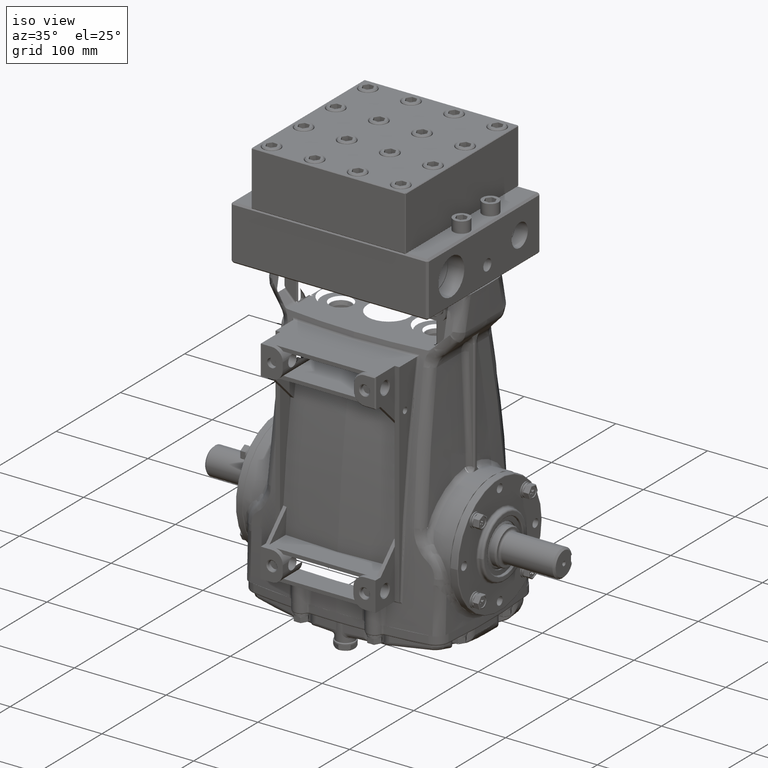
[diagram: clean part render]
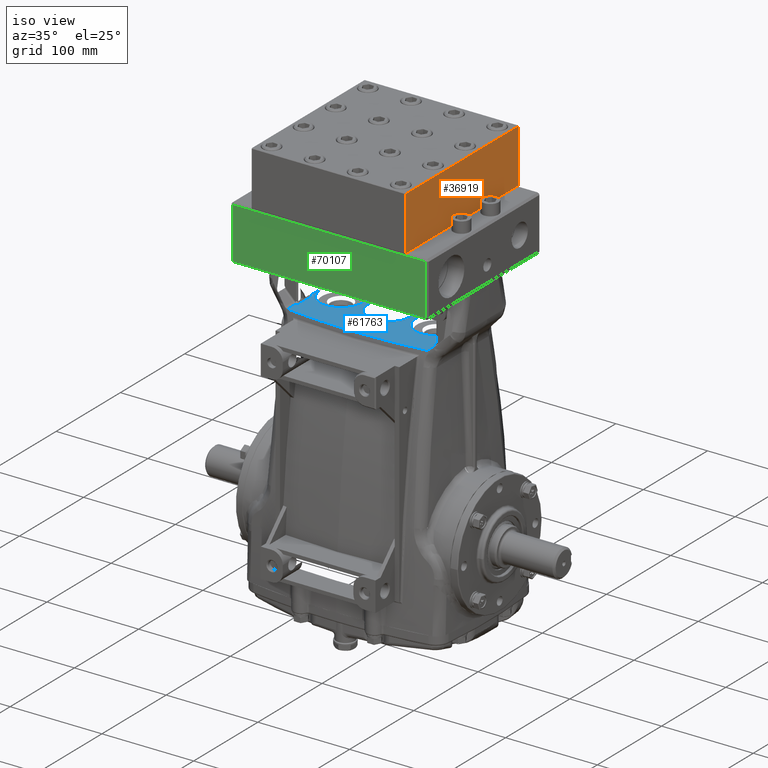
[diagram: same view with three faces highlighted in distinct colors, each labeled with its STEP entity id]
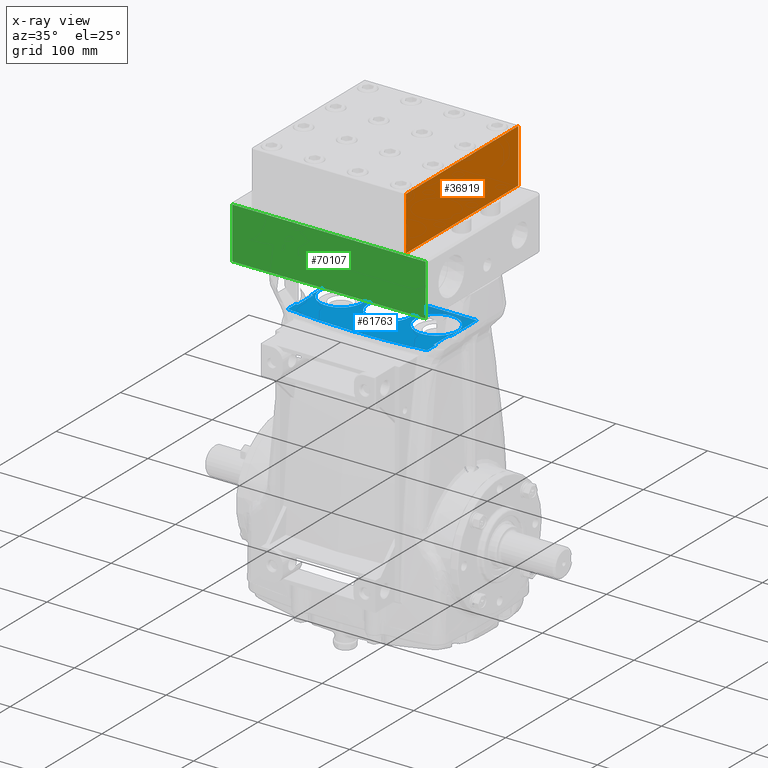
[diagram: x-ray of the same camera — body ghosted, the three highlighted faces saturated]
A machine part, iso view with three faces highlighted in distinct colors.
The next image is the same camera in x-ray (body ghosted, the three faces saturated) — at least one of them is partly hidden behind the body in this view.
Their STEP definitions:

[orange] entity #36919 — the highlighted planar face has unit normal (-1, 0, 0).
#8 = EDGE_CURVE ( 'NONE', #15807, #11456, #44020, .T. ) ;
#3622 = VERTEX_POINT ( 'NONE', #10891 ) ;
#4827 = LINE ( 'NONE', #73157, #66528 ) ;
#8613 = ORIENTED_EDGE ( 'NONE', *, *, #55621, .T. ) ;
#10891 = CARTESIAN_POINT ( 'NONE',  ( 3.108150490860838833, 3.647093078901849861, 14.61846456692805596 ) ) ;
#11456 = VERTEX_POINT ( 'NONE', #55326 ) ;
#13055 = EDGE_LOOP ( 'NONE', ( #8613, #63584, #26676, #78775 ) ) ;
#13486 = DIRECTION ( 'NONE',  ( -1.000000000000000000, 0.000000000000000000, 0.000000000000000000 ) ) ;
#13928 = CARTESIAN_POINT ( 'NONE',  ( 3.108150490860838833, -3.237906921098150370, 12.30846456692805724 ) ) ;
#15807 = VERTEX_POINT ( 'NONE', #13928 ) ;
#18230 = VECTOR ( 'NONE', #25028, 39.37007874015748143 ) ;
#22046 = CARTESIAN_POINT ( 'NONE',  ( 3.108150490860838833, 3.672093078901849772, 14.64346456692805631 ) ) ;
#25028 = DIRECTION ( 'NONE',  ( 0.000000000000000000, 1.000000000000000000, 0.000000000000000000 ) ) ;
#25298 = VECTOR ( 'NONE', #84274, 39.37007874015748143 ) ;
#26676 = ORIENTED_EDGE ( 'NONE', *, *, #47559, .T. ) ;
#31241 = VERTEX_POINT ( 'NONE', #31434 ) ;
#31434 = CARTESIAN_POINT ( 'NONE',  ( 3.108150490860838833, -3.237906921098150370, 14.61846456692805596 ) ) ;
#31532 = DIRECTION ( 'NONE',  ( 0.000000000000000000, 0.000000000000000000, -1.000000000000000000 ) ) ;
#33847 = DIRECTION ( 'NONE',  ( 0.000000000000000000, 0.000000000000000000, 1.000000000000000000 ) ) ;
#36919 = ADVANCED_FACE ( 'NONE', ( #41955 ), #49176, .F. ) ;
#37527 = VECTOR ( 'NONE', #45693, 39.37007874015748143 ) ;
#41955 = FACE_OUTER_BOUND ( 'NONE', #13055, .T. ) ;
#42622 = CARTESIAN_POINT ( 'NONE',  ( 3.108150490860838833, 3.647093078901849861, 14.64346456692805631 ) ) ;
#44020 = LINE ( 'NONE', #79320, #18230 ) ;
#45693 = DIRECTION ( 'NONE',  ( 0.000000000000000000, -1.000000000000000000, 0.000000000000000000 ) ) ;
#47559 = EDGE_CURVE ( 'NONE', #11456, #3622, #61649, .T. ) ;
#49176 = PLANE ( 'NONE',  #61341 ) ;
#52469 = LINE ( 'NONE', #80117, #37527 ) ;
#55326 = CARTESIAN_POINT ( 'NONE',  ( 3.108150490860838833, 3.647093078901849861, 12.30846456692805724 ) ) ;
#55621 = EDGE_CURVE ( 'NONE', #31241, #15807, #4827, .T. ) ;
#61341 = AXIS2_PLACEMENT_3D ( 'NONE', #22046, #13486, #33847 ) ;
#61649 = LINE ( 'NONE', #42622, #25298 ) ;
#63584 = ORIENTED_EDGE ( 'NONE', *, *, #8, .T. ) ;
#66528 = VECTOR ( 'NONE', #31532, 39.37007874015748143 ) ;
#73157 = CARTESIAN_POINT ( 'NONE',  ( 3.108150490860838833, -3.237906921098150370, 14.64346456692805631 ) ) ;
#76537 = EDGE_CURVE ( 'NONE', #3622, #31241, #52469, .T. ) ;
#78775 = ORIENTED_EDGE ( 'NONE', *, *, #76537, .T. ) ;
#79320 = CARTESIAN_POINT ( 'NONE',  ( 3.108150490860838833, 3.672093078901849772, 12.30846456692805724 ) ) ;
#80117 = CARTESIAN_POINT ( 'NONE',  ( 3.108150490860838833, -3.262906921098149393, 14.61846456692805596 ) ) ;
#84274 = DIRECTION ( 'NONE',  ( 0.000000000000000000, 0.000000000000000000, 1.000000000000000000 ) ) ;

[blue] entity #61763 — the highlighted planar face has unit normal (0, 0, 1).
#108 = DIRECTION ( 'NONE',  ( 0.000000000000000000, 0.000000000000000000, 1.000000000000000000 ) ) ;
#111 = CARTESIAN_POINT ( 'NONE',  ( -3.114235335910814584, 1.322919850555393628, 7.795279527557978483 ) ) ;
#821 = ORIENTED_EDGE ( 'NONE', *, *, #72016, .T. ) ;
#1502 = EDGE_CURVE ( 'NONE', #37134, #22425, #66354, .T. ) ;
#1579 = CARTESIAN_POINT ( 'NONE',  ( -3.941006989454121978, 1.322919850555393628, 7.795279527557978483 ) ) ;
#1612 = CARTESIAN_POINT ( 'NONE',  ( -3.941006989454121978, 1.559140322996338535, 7.795279527557978483 ) ) ;
#1803 = AXIS2_PLACEMENT_3D ( 'NONE', #5461, #82818, #40281 ) ;
#2102 = VECTOR ( 'NONE', #27181, 39.37007874015748143 ) ;
#2482 = DIRECTION ( 'NONE',  ( 0.000000000000000000, 0.000000000000000000, 1.000000000000000000 ) ) ;
#2823 = ORIENTED_EDGE ( 'NONE', *, *, #66751, .T. ) ;
#2839 = VERTEX_POINT ( 'NONE', #60499 ) ;
#3348 = AXIS2_PLACEMENT_3D ( 'NONE', #69492, #63560, #64006 ) ;
#4189 = B_SPLINE_CURVE_WITH_KNOTS ( 'NONE', 3,
 ( #33716, #75802, #83925, #35055, #48157, #35501, #21475, #63079, #26936, #82595, #88960, #21926, #82153 ),
 .UNSPECIFIED., .F., .F.,
 ( 4, 1, 1, 1, 1, 1, 1, 1, 1, 1, 4 ),
 ( 0.01705626432255860289, 0.02248800266875475296, 0.03955954306842565660, 0.04920069791684063276, 0.05733757252449689368, 0.05903689102475136175, 0.06795898995396966458, 0.07803381234323830684, 0.08182793238196484076, 0.08760719812659660544, 0.09328233221348881943 ),
 .UNSPECIFIED. ) ;
#4201 = CARTESIAN_POINT ( 'NONE',  ( -3.196116823439000054, 1.559140322996338535, 7.795279527557978483 ) ) ;
#4217 = VECTOR ( 'NONE', #43487, 39.37007874015748143 ) ;
#4786 = VECTOR ( 'NONE', #40286, 39.37007874015748143 ) ;
#5461 = CARTESIAN_POINT ( 'NONE',  ( -2.248093603627349335, 0.4370930789018504514, 7.795279527557978483 ) ) ;
#6837 = DIRECTION ( 'NONE',  ( -1.000000000000000000, -0.000000000000000000, 0.000000000000000000 ) ) ;
#7559 = CARTESIAN_POINT ( 'NONE',  ( -3.114235335910814584, -0.05503290535011848977, 7.795279527557978483 ) ) ;
#7999 = EDGE_CURVE ( 'NONE', #18022, #35205, #82825, .T. ) ;
#8389 = FACE_BOUND ( 'NONE', #70327, .T. ) ;
#8423 = LINE ( 'NONE', #1612, #51644 ) ;
#9816 = EDGE_CURVE ( 'NONE', #53516, #20375, #75599, .T. ) ;
#10673 = ORIENTED_EDGE ( 'NONE', *, *, #32561, .T. ) ;
#12083 = ORIENTED_EDGE ( 'NONE', *, *, #54701, .F. ) ;
#12292 = CARTESIAN_POINT ( 'NONE',  ( -2.248093603627349335, 0.4370930789018504514, 7.795279527557978483 ) ) ;
#12708 = ORIENTED_EDGE ( 'NONE', *, *, #63162, .T. ) ;
#13916 = CARTESIAN_POINT ( 'NONE',  ( 2.794417805160679169, -1.486997874746501580, 7.795279527557978483 ) ) ;
#14111 = VERTEX_POINT ( 'NONE', #43023 ) ;
#15202 = FACE_OUTER_BOUND ( 'NONE', #31451, .T. ) ;
#15570 = VERTEX_POINT ( 'NONE', #70955 ) ;
#15810 = EDGE_CURVE ( 'NONE', #24319, #23918, #41504, .T. ) ;
#16119 = CARTESIAN_POINT ( 'NONE',  ( -3.941006989454121978, -0.05503290535011848977, 7.795279527557978483 ) ) ;
#16172 = CARTESIAN_POINT ( 'NONE',  ( 2.712536317632492366, -0.05503290535011842038, 7.795279527557978483 ) ) ;
#16303 = VERTEX_POINT ( 'NONE', #54948 ) ;
#16536 = EDGE_CURVE ( 'NONE', #14111, #27660, #63604, .T. ) ;
#17653 = EDGE_LOOP ( 'NONE', ( #43264, #35588 ) ) ;
#18022 = VERTEX_POINT ( 'NONE', #83083 ) ;
#18910 = CARTESIAN_POINT ( 'NONE',  ( -0.2008495091391611642, -1.677682556346924869, 7.795279527557978483 ) ) ;
#19355 = CARTESIAN_POINT ( 'NONE',  ( 0.04688569969485581468, -1.676792699020875910, 7.795279527557978483 ) ) ;
#20375 = VERTEX_POINT ( 'NONE', #39692 ) ;
#21475 = CARTESIAN_POINT ( 'NONE',  ( -1.501203409119580057, -1.642171080795323590, 7.795279527557936738 ) ) ;
#21926 = CARTESIAN_POINT ( 'NONE',  ( -0.2840156125252865649, -1.677682556346929088, 7.795279527557958055 ) ) ;
#22307 = EDGE_CURVE ( 'NONE', #22425, #37134, #81424, .T. ) ;
#22425 = VERTEX_POINT ( 'NONE', #73511 ) ;
#23072 = AXIS2_PLACEMENT_3D ( 'NONE', #12292, #88342, #68369 ) ;
#23918 = VERTEX_POINT ( 'NONE', #44641 ) ;
#24319 = VERTEX_POINT ( 'NONE', #83815 ) ;
#24609 = DIRECTION ( 'NONE',  ( 1.000000000000000000, 0.000000000000000000, 0.000000000000000000 ) ) ;
#25291 = ORIENTED_EDGE ( 'NONE', *, *, #1502, .F. ) ;
#25984 = CIRCLE ( 'NONE', #77959, 0.9055118110236217710 ) ;
#26145 = CARTESIAN_POINT ( 'NONE',  ( -0.1176834057530357774, -1.677682556346929532, 7.795279527557955390 ) ) ;
#26596 = CARTESIAN_POINT ( 'NONE',  ( -3.941006989454121978, -0.9802297557438193198, 7.795279527557978483 ) ) ;
#26936 = CARTESIAN_POINT ( 'NONE',  ( -0.9289548161936175275, -1.667021775391540395, 7.795279527557990029 ) ) ;
#27181 = DIRECTION ( 'NONE',  ( 0.000000000000000000, 1.000000000000000000, 0.000000000000000000 ) ) ;
#27660 = VERTEX_POINT ( 'NONE', #68398 ) ;
#27737 = DIRECTION ( 'NONE',  ( 1.000000000000000000, 0.000000000000000000, 0.000000000000000000 ) ) ;
#28583 = CARTESIAN_POINT ( 'NONE',  ( -3.941006989454121978, -0.05503290535011848977, 7.795279527557978483 ) ) ;
#29227 = DIRECTION ( 'NONE',  ( -1.000000000000000000, -0.000000000000000000, 0.000000000000000000 ) ) ;
#29238 = DIRECTION ( 'NONE',  ( 1.000000000000000000, -0.000000000000000000, -0.000000000000000000 ) ) ;
#29910 = CARTESIAN_POINT ( 'NONE',  ( -1.342581792603727564, 0.4370930789018506180, 7.795279527557978483 ) ) ;
#30098 = DIRECTION ( 'NONE',  ( 1.000000000000000000, 0.000000000000000000, -0.000000000000000000 ) ) ;
#30217 = DIRECTION ( 'NONE',  ( 1.000000000000000000, 0.000000000000000000, 0.000000000000000000 ) ) ;
#31451 = EDGE_LOOP ( 'NONE', ( #46680, #57570, #12708, #62589, #63180, #821, #35625, #72005, #83215, #48591, #10673, #2823, #44388 ) ) ;
#32561 = EDGE_CURVE ( 'NONE', #23918, #2839, #50061, .T. ) ;
#33378 = CARTESIAN_POINT ( 'NONE',  ( 2.439670170326348142, -1.531075459647744719, 7.795279527558030885 ) ) ;
#33716 = CARTESIAN_POINT ( 'NONE',  ( -3.196116823439003163, -1.486997874746502024, 7.795279527557977595 ) ) ;
#33827 = CARTESIAN_POINT ( 'NONE',  ( 1.099504390841257839, -1.642171080795323812, 7.795279527557936738 ) ) ;
#35055 = CARTESIAN_POINT ( 'NONE',  ( -2.435238310080732660, -1.573664737747606956, 7.795279527558013122 ) ) ;
#35205 = VERTEX_POINT ( 'NONE', #64805 ) ;
#35501 = CARTESIAN_POINT ( 'NONE',  ( -1.743121428597311784, -1.627543573792060050, 7.795279527557934962 ) ) ;
#35588 = ORIENTED_EDGE ( 'NONE', *, *, #69193, .T. ) ;
#35625 = ORIENTED_EDGE ( 'NONE', *, *, #67301, .T. ) ;
#35697 = B_SPLINE_CURVE_WITH_KNOTS ( 'NONE', 3,
 ( #13916, #75007, #33378, #82697, #74107, #41493, #33827, #46920, #47365, #53261, #19355, #26145, #18910 ),
 .UNSPECIFIED., .F., .F.,
 ( 4, 1, 1, 1, 1, 1, 1, 1, 1, 1, 4 ),
 ( 0.01705626432255864799, 0.02248800266875476683, 0.03955954306842567048, 0.04920069791684063276, 0.05733757252449689368, 0.05903689102475136868, 0.06795898995396967845, 0.07803381234323830684, 0.08182793238196485464, 0.08760719812659660544, 0.09328233221348881943 ),
 .UNSPECIFIED. ) ;
#36908 = VECTOR ( 'NONE', #50702, 39.37007874015748143 ) ;
#37134 = VERTEX_POINT ( 'NONE', #74472 ) ;
#37684 = VERTEX_POINT ( 'NONE', #82728 ) ;
#38827 = VECTOR ( 'NONE', #29238, 39.37007874015748143 ) ;
#39692 = CARTESIAN_POINT ( 'NONE',  ( 2.794417805160679169, -0.9802297557438193198, 7.795279527557978483 ) ) ;
#40281 = DIRECTION ( 'NONE',  ( -1.000000000000000000, 0.000000000000000000, 0.000000000000000000 ) ) ;
#40286 = DIRECTION ( 'NONE',  ( -0.000000000000000000, 1.000000000000000000, -0.000000000000000000 ) ) ;
#41493 = CARTESIAN_POINT ( 'NONE',  ( 1.341422410318989566, -1.627543573792060050, 7.795279527557933186 ) ) ;
#41504 = LINE ( 'NONE', #26596, #82347 ) ;
#41792 = CIRCLE ( 'NONE', #23072, 0.9055118110236217710 ) ;
#41943 = DIRECTION ( 'NONE',  ( -1.000000000000000000, 0.000000000000000000, 0.000000000000000000 ) ) ;
#42333 = VECTOR ( 'NONE', #6837, 39.37007874015748143 ) ;
#42387 = CARTESIAN_POINT ( 'NONE',  ( 2.712536317632492366, -0.9802297557438193198, 7.795279527557978483 ) ) ;
#42601 = LINE ( 'NONE', #28583, #76971 ) ;
#43023 = CARTESIAN_POINT ( 'NONE',  ( 0.7046623018844614394, 0.4370930789018504514, 7.795279527557978483 ) ) ;
#43264 = ORIENTED_EDGE ( 'NONE', *, *, #44315, .T. ) ;
#43305 = ORIENTED_EDGE ( 'NONE', *, *, #16536, .F. ) ;
#43487 = DIRECTION ( 'NONE',  ( 0.000000000000000000, -1.000000000000000000, 0.000000000000000000 ) ) ;
#43887 = VECTOR ( 'NONE', #70225, 39.37007874015748143 ) ;
#44025 = EDGE_CURVE ( 'NONE', #37684, #66467, #42601, .T. ) ;
#44186 = DIRECTION ( 'NONE',  ( -0.000000000000000000, -1.000000000000000000, -0.000000000000000000 ) ) ;
#44315 = EDGE_CURVE ( 'NONE', #15570, #58073, #59620, .T. ) ;
#44388 = ORIENTED_EDGE ( 'NONE', *, *, #84942, .F. ) ;
#44392 = LINE ( 'NONE', #64749, #4217 ) ;
#44641 = CARTESIAN_POINT ( 'NONE',  ( -3.196116823439002719, -0.9802297557438193198, 7.795279527557978483 ) ) ;
#46247 = AXIS2_PLACEMENT_3D ( 'NONE', #73900, #73459, #24609 ) ;
#46680 = ORIENTED_EDGE ( 'NONE', *, *, #9816, .T. ) ;
#46920 = CARTESIAN_POINT ( 'NONE',  ( 0.8303558418428516053, -1.656105432476671746, 7.795279527557955390 ) ) ;
#47365 = CARTESIAN_POINT ( 'NONE',  ( 0.5272557979152950880, -1.667021775391541061, 7.795279527557989141 ) ) ;
#47952 = CARTESIAN_POINT ( 'NONE',  ( 2.794417805160679169, 1.322919850555393628, 7.795279527557978483 ) ) ;
#48157 = CARTESIAN_POINT ( 'NONE',  ( -1.992544435902143585, -1.610444351065169144, 7.795279527557953614 ) ) ;
#48394 = ORIENTED_EDGE ( 'NONE', *, *, #22307, .F. ) ;
#48591 = ORIENTED_EDGE ( 'NONE', *, *, #15810, .T. ) ;
#49408 = LINE ( 'NONE', #111, #43887 ) ;
#49935 = CARTESIAN_POINT ( 'NONE',  ( 2.794417805160679169, -1.486997874746501580, 7.795279527557978483 ) ) ;
#50030 = LINE ( 'NONE', #16119, #38827 ) ;
#50061 = LINE ( 'NONE', #57287, #87138 ) ;
#50106 = DIRECTION ( 'NONE',  ( -1.051346764723242652E-16, 0.000000000000000000, 1.000000000000000000 ) ) ;
#50702 = DIRECTION ( 'NONE',  ( -0.000000000000000000, 1.000000000000000000, -0.000000000000000000 ) ) ;
#51644 = VECTOR ( 'NONE', #29227, 39.37007874015748143 ) ;
#53261 = CARTESIAN_POINT ( 'NONE',  ( 0.2592541118654107524, -1.673463811848706184, 7.795279527557990029 ) ) ;
#53516 = VERTEX_POINT ( 'NONE', #49935 ) ;
#54701 = EDGE_CURVE ( 'NONE', #27660, #14111, #25984, .T. ) ;
#54948 = CARTESIAN_POINT ( 'NONE',  ( -0.2008495091391611642, -1.677682556346924869, 7.795279527557978483 ) ) ;
#57287 = CARTESIAN_POINT ( 'NONE',  ( -3.196116823439002719, 1.322919850555393628, 7.795279527557978483 ) ) ;
#57570 = ORIENTED_EDGE ( 'NONE', *, *, #89340, .T. ) ;
#58073 = VERTEX_POINT ( 'NONE', #29910 ) ;
#59620 = CIRCLE ( 'NONE', #1803, 0.9055118110236217710 ) ;
#60499 = CARTESIAN_POINT ( 'NONE',  ( -3.196116823439003163, -1.486997874746502024, 7.795279527557977595 ) ) ;
#61763 = ADVANCED_FACE ( 'NONE', ( #15202, #72156, #64007, #8389 ), #63561, .T. ) ;
#62589 = ORIENTED_EDGE ( 'NONE', *, *, #72965, .T. ) ;
#63079 = CARTESIAN_POINT ( 'NONE',  ( -1.232054860121173379, -1.656105432476671524, 7.795279527557958943 ) ) ;
#63162 = EDGE_CURVE ( 'NONE', #83758, #64731, #70648, .T. ) ;
#63180 = ORIENTED_EDGE ( 'NONE', *, *, #7999, .T. ) ;
#63560 = DIRECTION ( 'NONE',  ( -1.051346764723242652E-16, 0.000000000000000000, 1.000000000000000000 ) ) ;
#63561 = PLANE ( 'NONE',  #77281 ) ;
#63604 = CIRCLE ( 'NONE', #46247, 0.9055118110236217710 ) ;
#64006 = DIRECTION ( 'NONE',  ( 1.000000000000000000, 0.000000000000000000, 0.000000000000000000 ) ) ;
#64007 = FACE_BOUND ( 'NONE', #88288, .T. ) ;
#64731 = VERTEX_POINT ( 'NONE', #16172 ) ;
#64749 = CARTESIAN_POINT ( 'NONE',  ( -3.196116823439000054, 1.322919850555393628, 7.795279527557978483 ) ) ;
#64805 = CARTESIAN_POINT ( 'NONE',  ( 2.794417805160678281, 1.559140322996338535, 7.795279527557978483 ) ) ;
#66354 = CIRCLE ( 'NONE', #82343, 0.9055118110236217710 ) ;
#66467 = VERTEX_POINT ( 'NONE', #7559 ) ;
#66751 = EDGE_CURVE ( 'NONE', #2839, #16303, #4189, .T. ) ;
#67301 = EDGE_CURVE ( 'NONE', #84380, #37684, #44392, .T. ) ;
#68369 = DIRECTION ( 'NONE',  ( -1.000000000000000000, 0.000000000000000000, 0.000000000000000000 ) ) ;
#68398 = CARTESIAN_POINT ( 'NONE',  ( -1.106361320162782214, 0.4370930789018506180, 7.795279527557978483 ) ) ;
#69193 = EDGE_CURVE ( 'NONE', #58073, #15570, #41792, .T. ) ;
#69492 = CARTESIAN_POINT ( 'NONE',  ( 1.846394585349026896, 0.4370930789018504514, 7.795279527557978483 ) ) ;
#70225 = DIRECTION ( 'NONE',  ( 0.000000000000000000, -1.000000000000000000, 0.000000000000000000 ) ) ;
#70327 = EDGE_LOOP ( 'NONE', ( #25291, #48394 ) ) ;
#70648 = LINE ( 'NONE', #84732, #36908 ) ;
#70955 = CARTESIAN_POINT ( 'NONE',  ( -3.153605414650971106, 0.4370930789018504514, 7.795279527557978483 ) ) ;
#72005 = ORIENTED_EDGE ( 'NONE', *, *, #44025, .T. ) ;
#72016 = EDGE_CURVE ( 'NONE', #35205, #84380, #8423, .T. ) ;
#72156 = FACE_BOUND ( 'NONE', #17653, .T. ) ;
#72965 = EDGE_CURVE ( 'NONE', #64731, #18022, #50030, .T. ) ;
#73459 = DIRECTION ( 'NONE',  ( 0.000000000000000000, 0.000000000000000000, 1.000000000000000000 ) ) ;
#73511 = CARTESIAN_POINT ( 'NONE',  ( 0.9408827743254051246, 0.4370930789018506180, 7.795279527557978483 ) ) ;
#73900 = CARTESIAN_POINT ( 'NONE',  ( -0.2008495091391602760, 0.4370930789018504514, 7.795279527557978483 ) ) ;
#74107 = CARTESIAN_POINT ( 'NONE',  ( 1.590845417623820923, -1.610444351065169588, 7.795279527557951837 ) ) ;
#74472 = CARTESIAN_POINT ( 'NONE',  ( 2.751906396372648889, 0.4370930789018504514, 7.795279527557978483 ) ) ;
#74692 = CARTESIAN_POINT ( 'NONE',  ( 2.794417805160678281, 1.322919850555393628, 7.795279527557978483 ) ) ;
#75007 = CARTESIAN_POINT ( 'NONE',  ( 2.725328685868345424, -1.495832510006305682, 7.795279527558007793 ) ) ;
#75599 = LINE ( 'NONE', #47952, #2102 ) ;
#75622 = LINE ( 'NONE', #81088, #42333 ) ;
#75802 = CARTESIAN_POINT ( 'NONE',  ( -3.127027704146668974, -1.495832510006305460, 7.795279527558010457 ) ) ;
#76971 = VECTOR ( 'NONE', #78788, 39.37007874015748143 ) ;
#77281 = AXIS2_PLACEMENT_3D ( 'NONE', #1579, #2482, #30098 ) ;
#77959 = AXIS2_PLACEMENT_3D ( 'NONE', #86764, #108, #27737 ) ;
#78639 = CARTESIAN_POINT ( 'NONE',  ( 1.846394585349026896, 0.4370930789018504514, 7.795279527557978483 ) ) ;
#78788 = DIRECTION ( 'NONE',  ( 1.000000000000000000, 0.000000000000000000, -0.000000000000000000 ) ) ;
#81088 = CARTESIAN_POINT ( 'NONE',  ( -3.941006989454121978, -0.9802297557438193198, 7.795279527557978483 ) ) ;
#81424 = CIRCLE ( 'NONE', #3348, 0.9055118110236217710 ) ;
#81644 = EDGE_CURVE ( 'NONE', #66467, #24319, #49408, .T. ) ;
#82153 = CARTESIAN_POINT ( 'NONE',  ( -0.2008495091391611642, -1.677682556346924869, 7.795279527557978483 ) ) ;
#82343 = AXIS2_PLACEMENT_3D ( 'NONE', #78639, #50106, #30217 ) ;
#82347 = VECTOR ( 'NONE', #41943, 39.37007874015748143 ) ;
#82595 = CARTESIAN_POINT ( 'NONE',  ( -0.6609531301437330253, -1.673463811848706184, 7.795279527557991806 ) ) ;
#82697 = CARTESIAN_POINT ( 'NONE',  ( 2.033539291802410443, -1.573664737747607845, 7.795279527558011345 ) ) ;
#82728 = CARTESIAN_POINT ( 'NONE',  ( -3.196116823439000054, -0.05503290535011848977, 7.795279527557978483 ) ) ;
#82818 = DIRECTION ( 'NONE',  ( -1.051346764723242652E-16, -0.000000000000000000, -1.000000000000000000 ) ) ;
#82825 = LINE ( 'NONE', #74692, #4786 ) ;
#83083 = CARTESIAN_POINT ( 'NONE',  ( 2.794417805160678281, -0.05503290535011848977, 7.795279527557978483 ) ) ;
#83215 = ORIENTED_EDGE ( 'NONE', *, *, #81644, .T. ) ;
#83758 = VERTEX_POINT ( 'NONE', #42387 ) ;
#83815 = CARTESIAN_POINT ( 'NONE',  ( -3.114235335910814584, -0.9802297557438193198, 7.795279527557978483 ) ) ;
#83925 = CARTESIAN_POINT ( 'NONE',  ( -2.841369188604670803, -1.531075459647744719, 7.795279527558032662 ) ) ;
#84380 = VERTEX_POINT ( 'NONE', #4201 ) ;
#84732 = CARTESIAN_POINT ( 'NONE',  ( 2.712536317632491922, 1.322919850555393628, 7.795279527557978483 ) ) ;
#84942 = EDGE_CURVE ( 'NONE', #53516, #16303, #35697, .T. ) ;
#86764 = CARTESIAN_POINT ( 'NONE',  ( -0.2008495091391602760, 0.4370930789018504514, 7.795279527557978483 ) ) ;
#87138 = VECTOR ( 'NONE', #44186, 39.37007874015748143 ) ;
#88288 = EDGE_LOOP ( 'NONE', ( #43305, #12083 ) ) ;
#88342 = DIRECTION ( 'NONE',  ( -1.051346764723242652E-16, -0.000000000000000000, -1.000000000000000000 ) ) ;
#88960 = CARTESIAN_POINT ( 'NONE',  ( -0.4485847179731780598, -1.676792699020875910, 7.795279527557980259 ) ) ;
#89340 = EDGE_CURVE ( 'NONE', #20375, #83758, #75622, .T. ) ;

[green] entity #70107 — the highlighted planar face has unit normal (-0, 1, 0).
#318 = EDGE_CURVE ( 'NONE', #67213, #16116, #82693, .T. ) ;
#718 = DIRECTION ( 'NONE',  ( -1.000000000000000000, -1.290957005378088335E-16, 0.000000000000000000 ) ) ;
#1577 = FACE_OUTER_BOUND ( 'NONE', #42687, .T. ) ;
#3866 = VECTOR ( 'NONE', #50748, 39.37007874015748143 ) ;
#7672 = VECTOR ( 'NONE', #24614, 39.37007874015748143 ) ;
#10015 = CARTESIAN_POINT ( 'NONE',  ( -4.354392816225780116, -3.224324243932796374, 12.20472440944774384 ) ) ;
#12503 = EDGE_CURVE ( 'NONE', #16116, #63856, #28214, .T. ) ;
#13749 = DIRECTION ( 'NONE',  ( 0.000000000000000000, 0.000000000000000000, 1.000000000000000000 ) ) ;
#16116 = VERTEX_POINT ( 'NONE', #17461 ) ;
#17461 = CARTESIAN_POINT ( 'NONE',  ( -4.354392816225780116, -3.224324243932796374, 9.999999999998919975 ) ) ;
#20687 = CARTESIAN_POINT ( 'NONE',  ( -4.354392816225780116, -3.224324243932796374, 12.28346456692805688 ) ) ;
#20948 = ORIENTED_EDGE ( 'NONE', *, *, #80397, .T. ) ;
#23172 = CARTESIAN_POINT ( 'NONE',  ( 3.952693797947458343, -3.224324243932795042, 12.20472440944774384 ) ) ;
#24614 = DIRECTION ( 'NONE',  ( -1.000000000000000000, -1.290957005378088335E-16, -0.000000000000000000 ) ) ;
#26715 = VECTOR ( 'NONE', #13749, 39.37007874015748143 ) ;
#28214 = LINE ( 'NONE', #83442, #3866 ) ;
#29275 = CARTESIAN_POINT ( 'NONE',  ( 3.952693797947458343, -3.224324243932795042, 9.999999999998919975 ) ) ;
#39868 = VECTOR ( 'NONE', #48260, 39.37007874015748143 ) ;
#41449 = DIRECTION ( 'NONE',  ( -1.290957005378088335E-16, 1.000000000000000000, 0.000000000000000000 ) ) ;
#41889 = CARTESIAN_POINT ( 'NONE',  ( -4.433132973706092272, -3.224324243932796374, 12.28346456692805688 ) ) ;
#42326 = ORIENTED_EDGE ( 'NONE', *, *, #12503, .T. ) ;
#42687 = EDGE_LOOP ( 'NONE', ( #20948, #52940, #42326, #55365 ) ) ;
#46320 = CARTESIAN_POINT ( 'NONE',  ( 3.952693797947458343, -3.224324243932795042, 12.28346456692805688 ) ) ;
#47650 = AXIS2_PLACEMENT_3D ( 'NONE', #41889, #41449, #718 ) ;
#48260 = DIRECTION ( 'NONE',  ( 0.000000000000000000, 0.000000000000000000, -1.000000000000000000 ) ) ;
#50367 = CARTESIAN_POINT ( 'NONE',  ( -4.433132973706092272, -3.224324243932796374, 12.20472440944774384 ) ) ;
#50748 = DIRECTION ( 'NONE',  ( 1.000000000000000000, 1.290957005378088335E-16, 0.000000000000000000 ) ) ;
#52940 = ORIENTED_EDGE ( 'NONE', *, *, #318, .T. ) ;
#55365 = ORIENTED_EDGE ( 'NONE', *, *, #60231, .T. ) ;
#60231 = EDGE_CURVE ( 'NONE', #63856, #81790, #67600, .T. ) ;
#63856 = VERTEX_POINT ( 'NONE', #29275 ) ;
#67213 = VERTEX_POINT ( 'NONE', #10015 ) ;
#67600 = LINE ( 'NONE', #46320, #26715 ) ;
#70107 = ADVANCED_FACE ( 'NONE', ( #1577 ), #76307, .F. ) ;
#76307 = PLANE ( 'NONE',  #47650 ) ;
#80397 = EDGE_CURVE ( 'NONE', #81790, #67213, #86638, .T. ) ;
#81790 = VERTEX_POINT ( 'NONE', #23172 ) ;
#82693 = LINE ( 'NONE', #20687, #39868 ) ;
#83442 = CARTESIAN_POINT ( 'NONE',  ( -4.433132973706092272, -3.224324243932796374, 9.999999999998919975 ) ) ;
#86638 = LINE ( 'NONE', #50367, #7672 ) ;